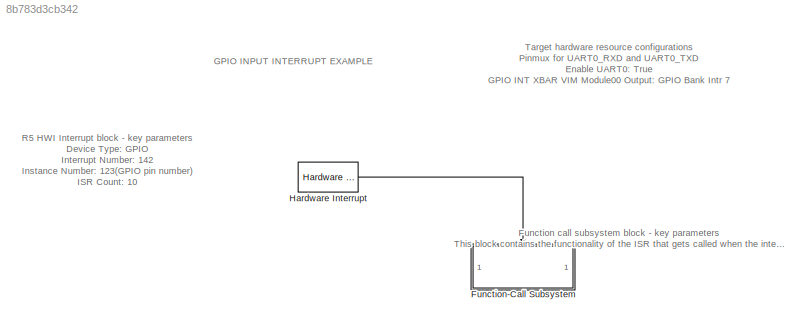
MODEL slx_8b783d3cb342
KIND model
CONFIG AbsTol = auto
CONFIG EnableMultiTasking = off
CONFIG FixedStep = auto
CONFIG MaxStep = auto
CONFIG MinStep = auto
CONFIG RelTol = 1e-3
CONFIG SampleTimeConstraint = Unconstrained
CONFIG SolverName = FixedStepAuto
CONFIG StartTime = 0.0
CONFIG StopTime = 10.0
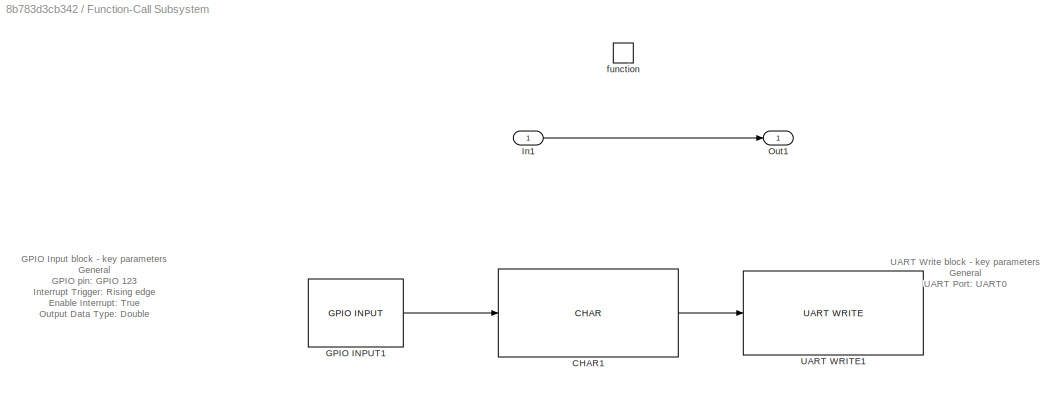
BLOCK [SubSystem] Function-Call Subsystem
  TreatAsAtomicUnit = on
BLOCK [Reference] Function-Call Subsystem/CHAR1  REF=peripheral_library_blocks_am263px/CHAR
  SourceBlock = peripheral_library_blocks_am263px/CHAR
  SourceType = CHAR
BLOCK [Reference] Function-Call Subsystem/GPIO INPUT1  REF=peripheral_library_blocks_am263px/GPIO INPUT
  SourceBlock = peripheral_library_blocks_am263px/GPIO INPUT
  SourceType = GPIO_IN_AM263PX
BLOCK [Inport] Function-Call Subsystem/In1
BLOCK [Outport] Function-Call Subsystem/Out1
BLOCK [Reference] Function-Call Subsystem/UART WRITE1  REF=peripheral_library_blocks_am263px/UART WRITE
  SourceBlock = peripheral_library_blocks_am263px/UART WRITE
  SourceType = UART_WRITE_AM263PX
BLOCK [TriggerPort] Function-Call Subsystem/function
  StatesWhenEnabling = held
  TriggerType = function-call
  VariantControl = (inherit)
BLOCK [Reference] Hardware Interrupt  REF=HWI_lib/Hardware Interrupt
  SourceBlock = HWI_lib/Hardware Interrupt
  SourceProductName = Embedded Coder Support Package for AM263x - HWI Block
ANNOTATION (root): Function call subsystem block - key parameters This block contains the functionality of the ISR that gets called when the interrupt occurs. The ISR is configured to read the GPIO pin value and print in to UART console. The ISR gets called 'ISR Count' times
ANNOTATION (root): R5 HWI Interrupt block - key parameters Device Type: GPIO Interrupt Number: 142 Instance Number: 123(GPIO pin number) ISR Count: 10
ANNOTATION (root): Target hardware resource configurations Pinmux for UART0_RXD and UART0_TXD Enable UART0: True GPIO INT XBAR VIM Module00 Output: GPIO Bank Intr 7
ANNOTATION (root): GPIO INPUT INTERRUPT EXAMPLE
ANNOTATION Function-Call Subsystem: GPIO Input block - key parameters General GPIO pin: GPIO 123 Interrupt Trigger: Rising edge Enable Interrupt: True Output Data Type: Double
ANNOTATION Function-Call Subsystem: UART Write block - key parameters General UART Port: UART0
LINE Function-Call Subsystem/CHAR1:1 -> Function-Call Subsystem/UART WRITE1:1
LINE Function-Call Subsystem/GPIO INPUT1:1 -> Function-Call Subsystem/CHAR1:1
LINE Function-Call Subsystem/In1:1 -> Function-Call Subsystem/Out1:1
LINE Hardware Interrupt:1 -> Function-Call Subsystem:trigger
